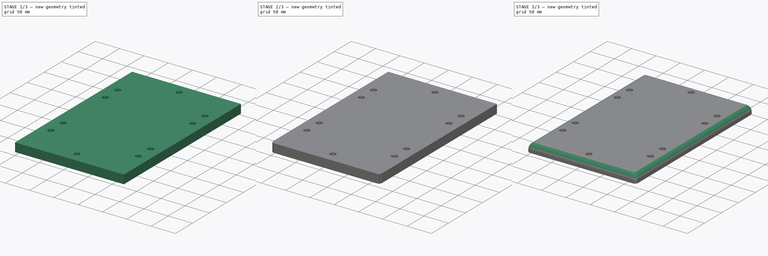
[diagram: build sequence overview — one tinted view per stage of 3, left to right]
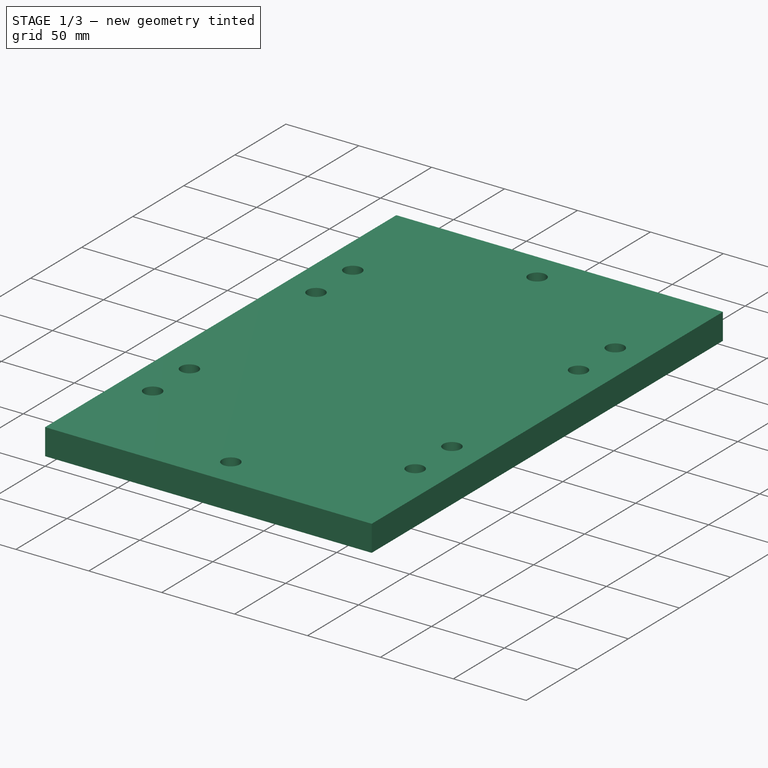
[diagram: stage 1 of 3 — iso view after this stage's code; geometry added in this stage tinted green]
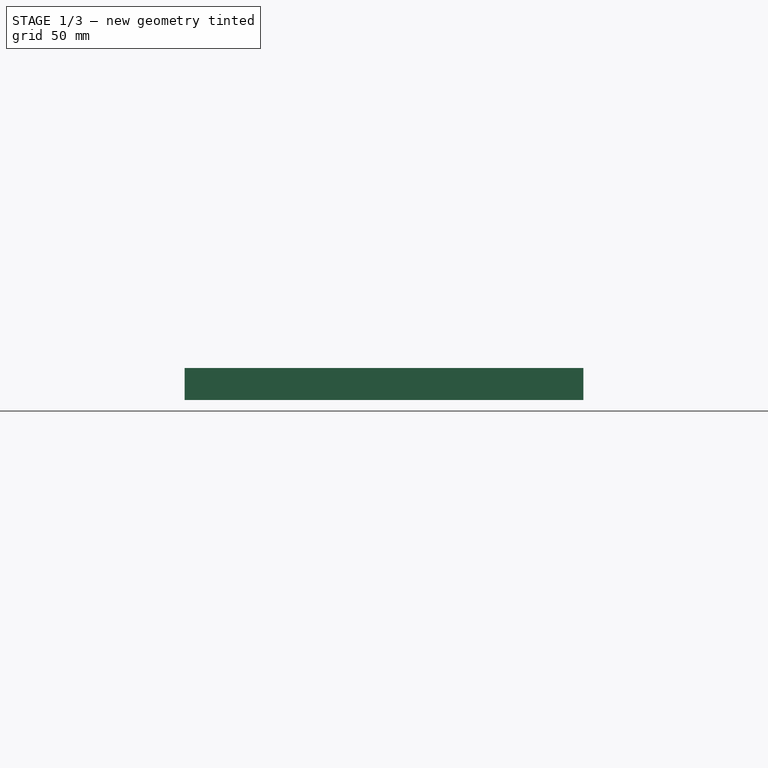
[diagram: stage 1 of 3 — front view after this stage's code; geometry added in this stage tinted green]
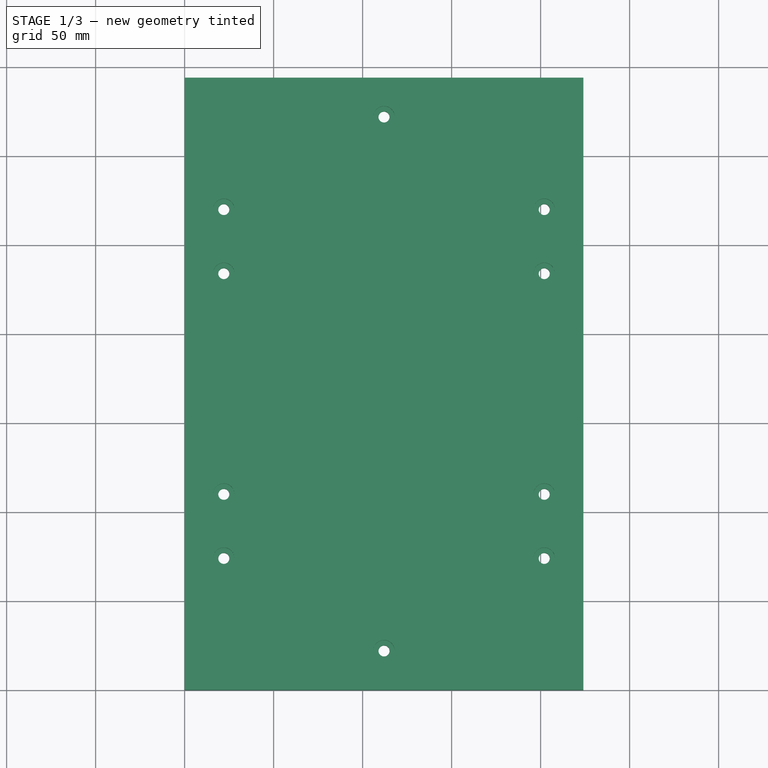
[diagram: stage 1 of 3 — top view after this stage's code; geometry added in this stage tinted green]
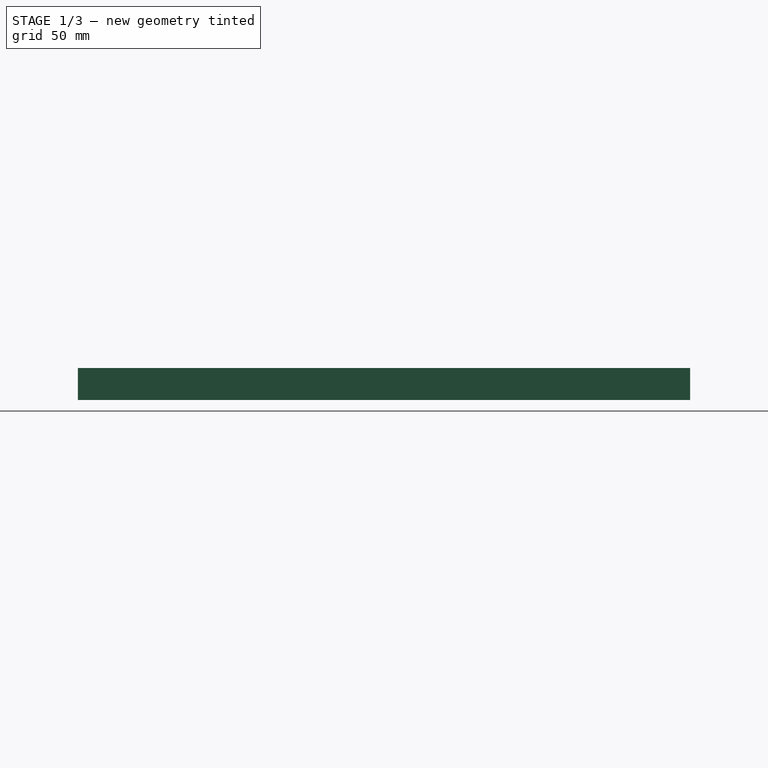
[diagram: stage 1 of 3 — right view after this stage's code; geometry added in this stage tinted green]
FCSTD DOCUMENT  (FreeCAD 0.17R9796 (Git))
Label: topbottom1b
License: All rights reserved
LicenseURL: http://en.wikipedia.org/wiki/All_rights_reserved
objects: PartDesign::Fillet×5, Sketcher::SketchObject×3, PartDesign::Pocket×2, PartDesign::Pad×1, PartDesign::Body×1
note: 15 computed .brp shape members not serialized (recipe doc carries the construction recipe); baked Part::Feature solids carry a one-line shape summary decoded from their .brp

FEATURE [Sketcher::SketchObject] Sketch
  MapMode = 5
  Support = -> [XY_Plane]
  sketch-geometry (4):
    g0: LineSegment StartX=0 StartY=344 StartZ=0 EndX=224 EndY=344 EndZ=0
    g1: LineSegment StartX=224 StartY=344 StartZ=0 EndX=224 EndY=0 EndZ=0
    g2: LineSegment StartX=224 StartY=0 StartZ=0 EndX=0 EndY=0 EndZ=0
    g3: LineSegment StartX=0 StartY=0 StartZ=0 EndX=0 EndY=344 EndZ=0
  constraints (11):
    c: Coincident(g0,g1)
    c: Coincident(g1,g2)
    c: Coincident(g2,g3)
    c: Coincident(g3,g0)
    c: Horizontal(g0)
    c: Horizontal(g2)
    c: Vertical(g1)
    c: Vertical(g3)
    c: Coincident(g2,g-1)
    c: DistanceY(g-1,g0) = 344
    c: DistanceX(g-1,g1) = 224
FEATURE [PartDesign::Pad] Pad
  Length = 18
  Length2 = 100
  Profile = -> Sketch
  Type = 0
FEATURE [Sketcher::SketchObject] Sketch001
  MapMode = 5
  Placement = pos=(0,0,18) rot=(0,0,1;0rad)
  Support = -> [Pad]
  sketch-geometry (10):
    g0: Circle CenterX=112 CenterY=322 CenterZ=0 NormalX=0 NormalY=0 NormalZ=1 Radius=6
    g1: Circle CenterX=22 CenterY=270 CenterZ=0 NormalX=0 NormalY=0 NormalZ=1 Radius=6
    g2: Circle CenterX=22 CenterY=74 CenterZ=0 NormalX=0 NormalY=0 NormalZ=1 Radius=6
    g3: Circle CenterX=202 CenterY=234 CenterZ=0 NormalX=0 NormalY=0 NormalZ=1 Radius=6
    g4: Circle CenterX=202 CenterY=110 CenterZ=0 NormalX=0 NormalY=0 NormalZ=1 Radius=6
    g5: Circle CenterX=112 CenterY=22 CenterZ=0 NormalX=0 NormalY=0 NormalZ=1 Radius=6
    g6: Circle CenterX=22 CenterY=234 CenterZ=0 NormalX=0 NormalY=0 NormalZ=1 Radius=6
    g7: Circle CenterX=22 CenterY=110 CenterZ=0 NormalX=0 NormalY=0 NormalZ=1 Radius=6
    g8: Circle CenterX=202 CenterY=270 CenterZ=0 NormalX=0 NormalY=0 NormalZ=1 Radius=6
    g9: Circle CenterX=202 CenterY=74 CenterZ=0 NormalX=0 NormalY=0 NormalZ=1 Radius=6
  constraints (30):
    c: DistanceX(g-1,g0) = 112
    c: DistanceX(g-1,g5) = 112
    c: DistanceY(g-1,g5) = 22
    c: DistanceY(g-1,g0) = 322
    c: Radius(g0) = 6
    c: Radius(g5) = 6
    c: DistanceX(g-1,g1) = 22
    c: DistanceX(g-1,g2) = 22
    c: DistanceX(g-1,g4) = 202
    c: DistanceX(g-1,g3) = 202
    c: DistanceY(g-1,g2) = 74
    c: DistanceX(g-1,g8) = 202
    c: DistanceX(g-1,g9) = 202
    c: DistanceX(g-1,g6) = 22
    c: DistanceX(g-1,g7) = 22
    c: DistanceY(g-1,g9) = 74
    c: DistanceY(g2,g7) = 36
    c: DistanceY(g9,g4) = 36
    c: DistanceY(g7,g6) = 124
    c: DistanceY(g6,g1) = 36
    c: DistanceY(g4,g3) = 124
    c: DistanceY(g3,g8) = 36
    c: Radius(g1) = 6
    c: Equal(g1,g6)
    c: Equal(g1,g7)
    c: Equal(g1,g2)
    c: Equal(g1,g8)
    c: Equal(g1,g3)
    c: Equal(g1,g4)
    c: Equal(g1,g9)
FEATURE [PartDesign::Pocket] Pocket
  BaseFeature = -> Pad
  Length = 7
  Profile = -> Sketch001
  Type = 0
FEATURE [Sketcher::SketchObject] Sketch002
  MapMode = 5
  Placement = pos=(0,0,0) rot=(1,0,0;3.14159rad)
  Support = -> [Pocket]
  sketch-geometry (10):
    g0: Circle CenterX=112 CenterY=-22 CenterZ=0 NormalX=0 NormalY=0 NormalZ=1 Radius=3.1
    g1: Circle CenterX=22 CenterY=-74 CenterZ=0 NormalX=0 NormalY=0 NormalZ=1 Radius=3.1
    g2: Circle CenterX=22 CenterY=-110 CenterZ=0 NormalX=0 NormalY=0 NormalZ=1 Radius=3.1
    g3: Circle CenterX=22 CenterY=-234 CenterZ=0 NormalX=0 NormalY=0 NormalZ=1 Radius=3.1
    g4: Circle CenterX=22 CenterY=-270 CenterZ=0 NormalX=0 NormalY=0 NormalZ=1 Radius=3.1
    g5: Circle CenterX=202 CenterY=-74 CenterZ=0 NormalX=0 NormalY=0 NormalZ=1 Radius=3.1
    g6: Circle CenterX=202 CenterY=-110 CenterZ=0 NormalX=0 NormalY=0 NormalZ=1 Radius=3.1
    g7: Circle CenterX=202 CenterY=-234 CenterZ=0 NormalX=0 NormalY=0 NormalZ=1 Radius=3.1
    g8: Circle CenterX=202 CenterY=-270 CenterZ=0 NormalX=0 NormalY=0 NormalZ=1 Radius=3.1
    g9: Circle CenterX=112 CenterY=-322 CenterZ=0 NormalX=0 NormalY=0 NormalZ=1 Radius=3.1
  constraints (27):
    c: DistanceY(g0,g-1) = 22
    c: DistanceY(g9,g-1) = 322
    c: DistanceX(g-1,g1) = 22
    c: DistanceX(g-1,g2) = 22
    c: DistanceX(g-1,g3) = 22
    c: DistanceX(g-1,g4) = 22
    c: DistanceX(g-1,g5) = 202
    c: DistanceX(g-1,g6) = 202
    c: DistanceX(g-1,g7) = 202
    c: DistanceX(g-1,g8) = 202
    c: Radius(g0) = 3.1
    c: Equal(g0, g1-g4) x4
    c: Equal(g0,g9)
    c: Equal(g0,g8)
    c: Equal(g0,g7)
    c: Equal(g0,g6)
    c: Equal(g0,g5)
    c: DistanceX(g-1,g0) = 112
    c: DistanceX(g-1,g9) = 112
    c: DistanceY(g1,g-1) = 74
    c: DistanceY(g5,g-1) = 74
    c: DistanceY(g2,g1) = 36
    c: DistanceY(g3,g2) = 124
    c: DistanceY(g4,g3) = 36
    c: DistanceY(g6,g5) = 36
    c: DistanceY(g7,g6) = 124
    c: DistanceY(g8,g7) = 36
FEATURE [PartDesign::Pocket] Pocket001
  BaseFeature = -> Pocket
  Length = 11
  Profile = -> Sketch002
  Type = 0
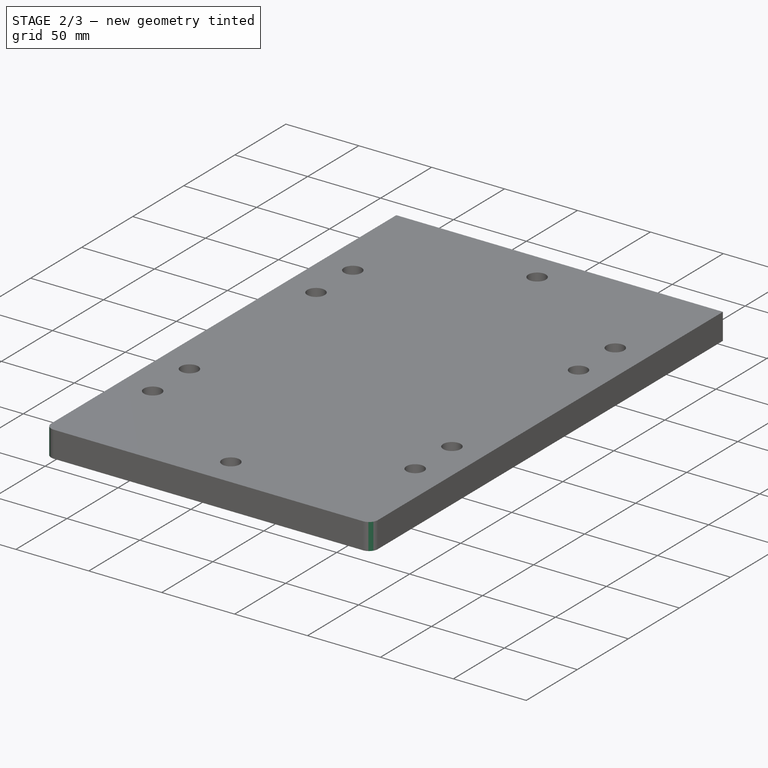
[diagram: stage 2 of 3 — iso view after this stage's code; geometry added in this stage tinted green]
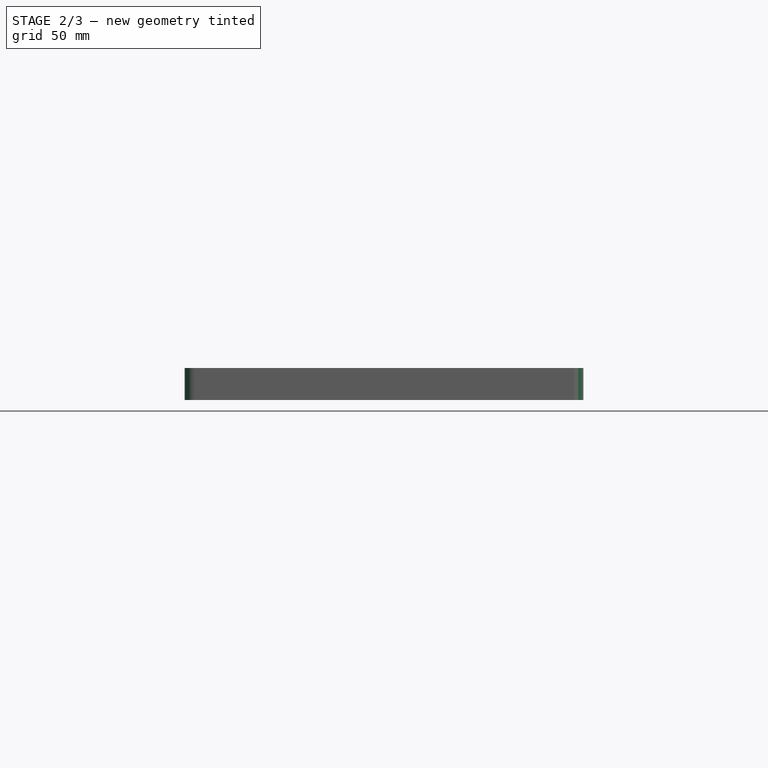
[diagram: stage 2 of 3 — front view after this stage's code; geometry added in this stage tinted green]
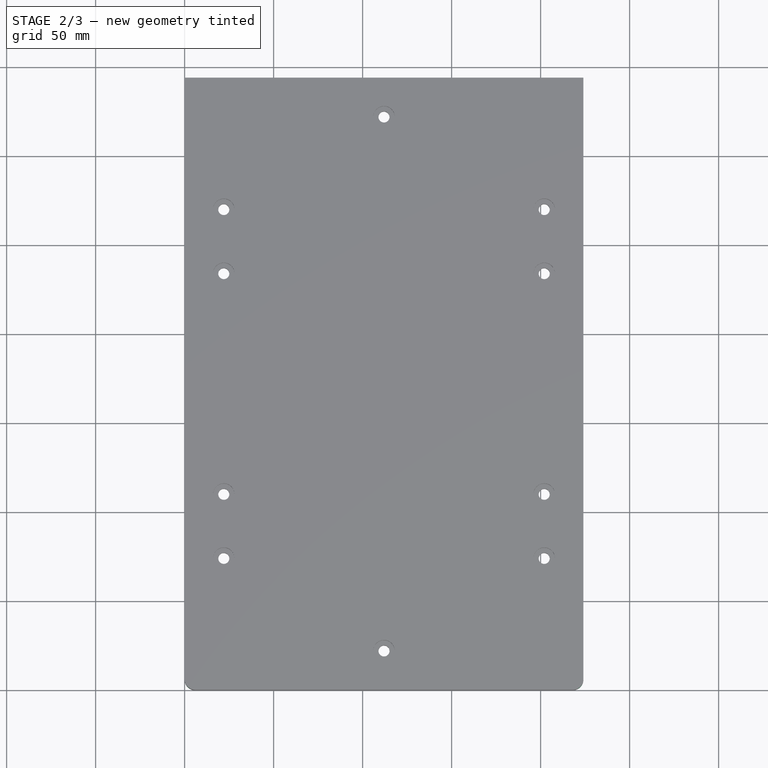
[diagram: stage 2 of 3 — top view after this stage's code; geometry added in this stage tinted green]
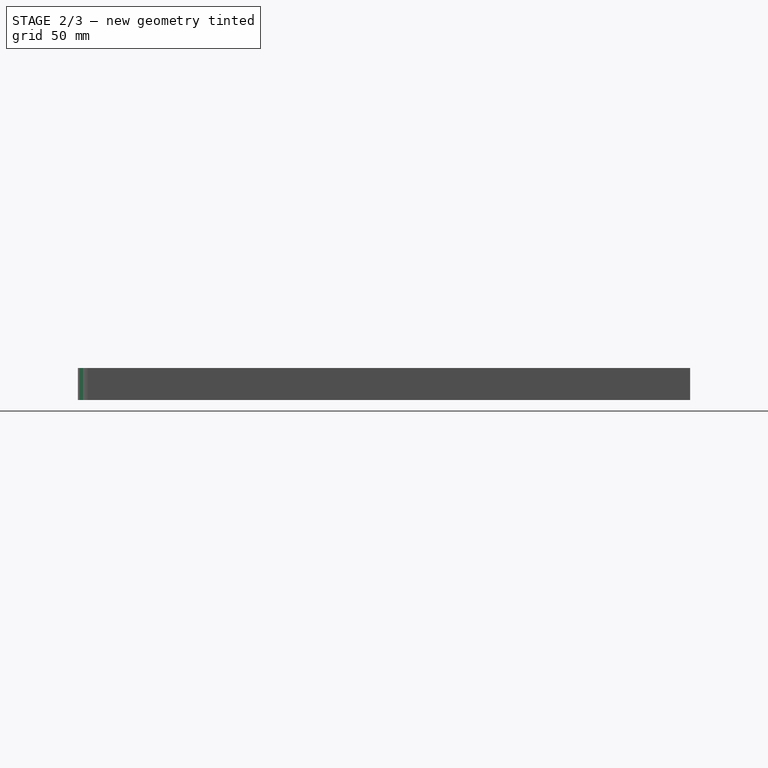
[diagram: stage 2 of 3 — right view after this stage's code; geometry added in this stage tinted green]
FEATURE [PartDesign::Fillet] Fillet
  Base = -> Pocket001 [Edge8]
  BaseFeature = -> Pocket001
  Radius = 6
FEATURE [PartDesign::Fillet] Fillet001
  Base = -> Fillet [Edge35]
  BaseFeature = -> Fillet
  Radius = 6
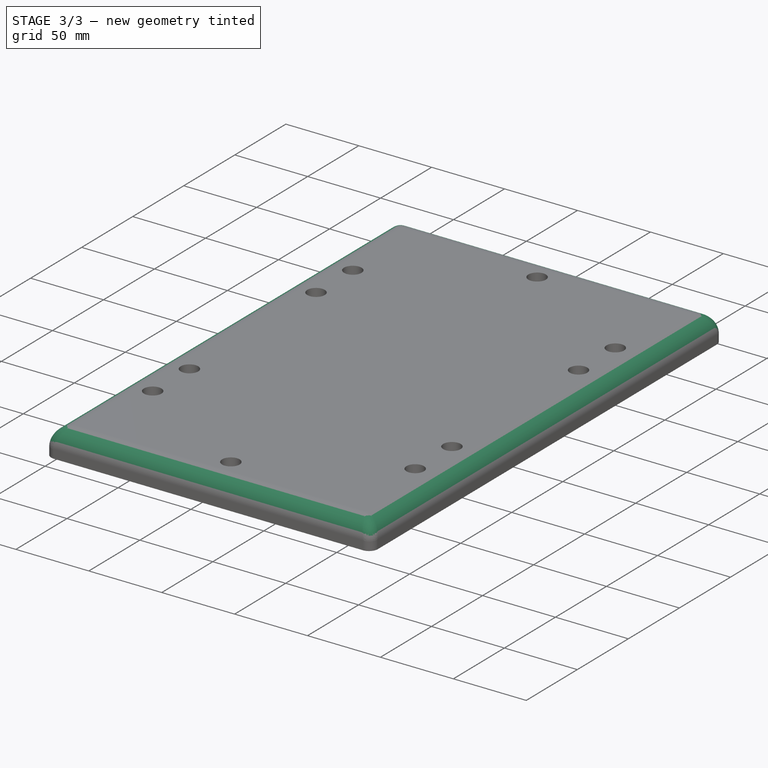
[diagram: stage 3 of 3 — iso view after this stage's code; geometry added in this stage tinted green]
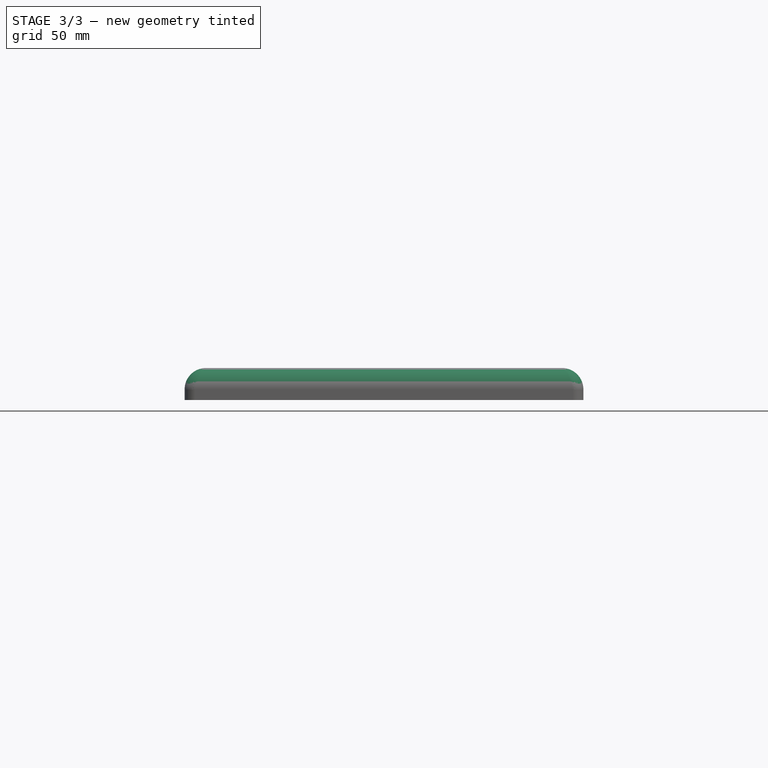
[diagram: stage 3 of 3 — front view after this stage's code; geometry added in this stage tinted green]
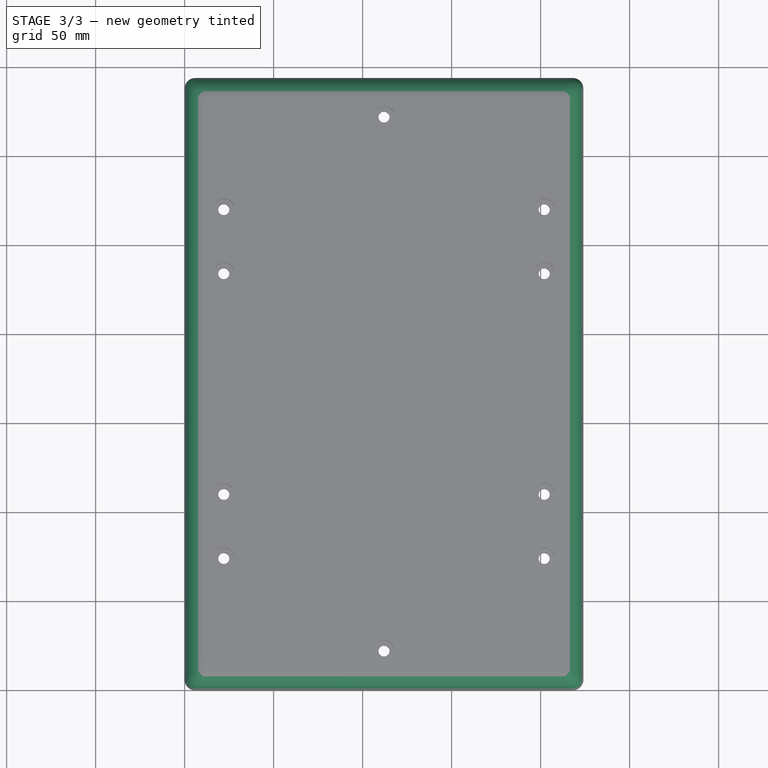
[diagram: stage 3 of 3 — top view after this stage's code; geometry added in this stage tinted green]
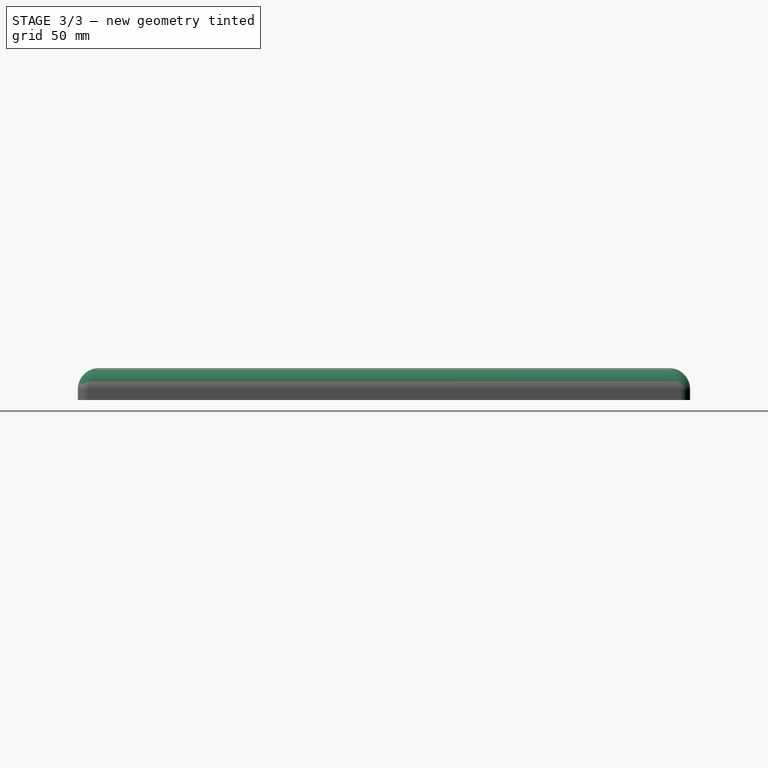
[diagram: stage 3 of 3 — right view after this stage's code; geometry added in this stage tinted green]
FEATURE [PartDesign::Fillet] Fillet002
  Base = -> Fillet001 [Edge24]
  BaseFeature = -> Fillet001
  Radius = 6
FEATURE [PartDesign::Fillet] Fillet003
  Base = -> Fillet002 [Edge25]
  BaseFeature = -> Fillet002
  Radius = 6
FEATURE [PartDesign::Fillet] Fillet004
  Base = -> Fillet003 [Edge34,Edge31,Edge33,Edge29,Edge25,Edge21,Edge23,Edge27]
  BaseFeature = -> Fillet003
  Radius = 12
FEATURE [PartDesign::Body] Body
  Group = -> [Sketch,Pad,Sketch001,Pocket,Sketch002,Pocket001,Fillet,Fillet001,Fillet002,Fillet003,Fillet004]
  Origin = -> BodyOrigin
  Tip = -> Fillet004
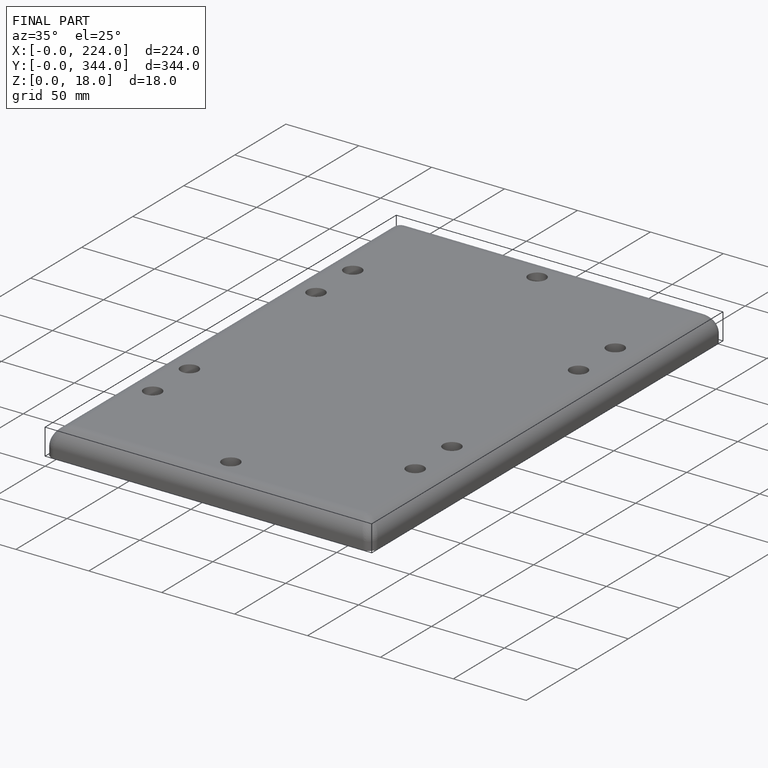
[diagram: finished part — iso view with bounding-box wireframe]
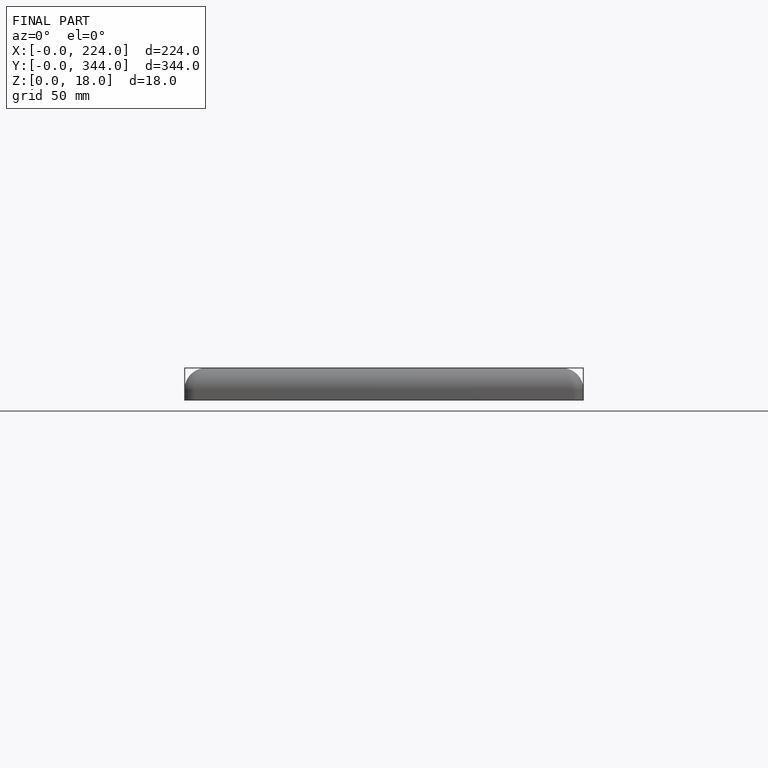
[diagram: finished part — front view with bounding-box wireframe]
